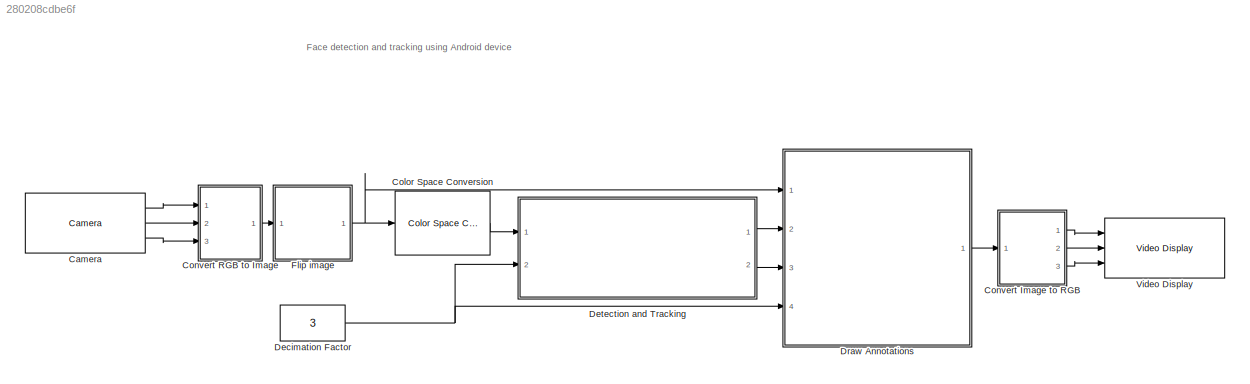
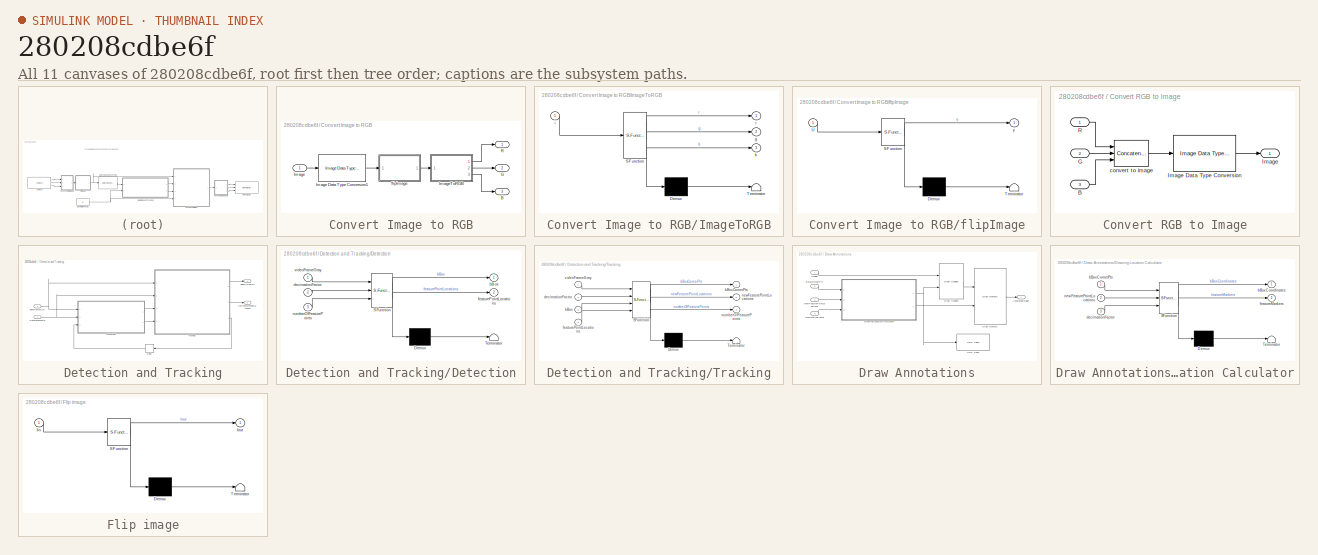
[diagram: thumbnail index - all 11 canvases of the model, root first then tree order]
MODEL slx_280208cdbe6f
KIND model
CONFIG AbsTol = auto
CONFIG EnableMultiTasking = off
CONFIG FixedStep = auto
CONFIG MaxStep = auto
CONFIG MinStep = auto
CONFIG RelTol = 1e-3
CONFIG SampleTimeConstraint = Unconstrained
CONFIG SolverName = FixedStepAuto
CONFIG StartTime = 0.0
CONFIG StopTime = inf
BLOCK [Reference] Camera  REF=androidaudiovideolib/Camera
  Ports = [0, 3]
  SourceBlock = androidaudiovideolib/Camera
  SourceProductBaseCode = ANDROID
  SourceType = codertarget.internal.androidCamera
BLOCK [Reference] Color Space Conversion  REF=visionconversions/Color Space
 Conversion
  Ports = [1, 1]
  SourceBlock = visionconversions/Color Space\n Conversion
  SourceProductBaseCode = VP
  SourceType = Color Space Conversion
BLOCK [SubSystem] Convert Image to RGB
  Ports = [1, 3]
  RequestExecContextInheritance = off
BLOCK [Outport] Convert Image to RGB/B
  Port = 3
BLOCK [Outport] Convert Image to RGB/G
  Port = 2
BLOCK [Inport] Convert Image to RGB/Image
BLOCK [Reference] Convert Image to RGB/Image Data Type Conversion1  REF=visionconversions/Image Data Type
Conversion
  Ports = [1, 1]
  SourceBlock = visionconversions/Image Data Type\nConversion
  SourceProductBaseCode = VP
  SourceType = Image Data Type Conversion
BLOCK [SubSystem] Convert Image to RGB/ImageToRGB
  ErrorFcn = Stateflow.Translate.translate
  PermitHierarchicalResolution = ExplicitOnly
  Ports = [1, 3]
  RequestExecContextInheritance = off
  SFBlockType = MATLAB Function
  TreatAsAtomicUnit = on
BLOCK [Demux] Convert Image to RGB/ImageToRGB/ Demux 
  Outputs = 1
  Ports = [1, 1]
BLOCK [S-Function] Convert Image to RGB/ImageToRGB/ SFunction 
  EnableBusSupport = on
  FunctionName = sf_sfun
  PortCounts = [1 4]
  Ports = [1, 4]
  SFcnIsStateOwnerBlock = off
  SFunctionDeploymentMode = off
  Tag = Stateflow S-Function 4
BLOCK [Terminator] Convert Image to RGB/ImageToRGB/ Terminator 
BLOCK [Outport] Convert Image to RGB/ImageToRGB/b
  Port = 3
  VectorParamsAs1DForOutWhenUnconnected = off
BLOCK [Outport] Convert Image to RGB/ImageToRGB/g
  Port = 2
  VectorParamsAs1DForOutWhenUnconnected = off
BLOCK [Inport] Convert Image to RGB/ImageToRGB/i
BLOCK [Outport] Convert Image to RGB/ImageToRGB/r
  VectorParamsAs1DForOutWhenUnconnected = off
BLOCK [Outport] Convert Image to RGB/R
BLOCK [SubSystem] Convert Image to RGB/flipImage
  ErrorFcn = Stateflow.Translate.translate
  PermitHierarchicalResolution = ExplicitOnly
  Ports = [1, 1]
  RequestExecContextInheritance = off
  SFBlockType = MATLAB Function
  TreatAsAtomicUnit = on
BLOCK [Demux] Convert Image to RGB/flipImage/ Demux 
  Outputs = 1
  Ports = [1, 1]
BLOCK [S-Function] Convert Image to RGB/flipImage/ SFunction 
  EnableBusSupport = on
  FunctionName = sf_sfun
  PortCounts = [1 2]
  Ports = [1, 2]
  SFcnIsStateOwnerBlock = off
  SFunctionDeploymentMode = off
  Tag = Stateflow S-Function 7
BLOCK [Terminator] Convert Image to RGB/flipImage/ Terminator 
BLOCK [Inport] Convert Image to RGB/flipImage/U
BLOCK [Outport] Convert Image to RGB/flipImage/y
  VectorParamsAs1DForOutWhenUnconnected = off
BLOCK [SubSystem] Convert RGB to Image
  Ports = [3, 1]
  RequestExecContextInheritance = off
BLOCK [Inport] Convert RGB to Image/B
  Port = 3
BLOCK [Inport] Convert RGB to Image/G
  Port = 2
BLOCK [Outport] Convert RGB to Image/Image
BLOCK [Reference] Convert RGB to Image/Image Data Type Conversion  REF=visionconversions/Image Data Type
Conversion
  Ports = [1, 1]
  SourceBlock = visionconversions/Image Data Type\nConversion
  SourceProductBaseCode = VP
  SourceType = Image Data Type Conversion
BLOCK [Inport] Convert RGB to Image/R
BLOCK [Concatenate] Convert RGB to Image/convert to image
  ConcatenateDimension = 3
  Mode = Multidimensional array
  NumInputs = 3
  Ports = [3, 1]
BLOCK [Constant] Decimation Factor
  Value = 3
BLOCK [SubSystem] Detection and Tracking
  Ports = [2, 2]
  RequestExecContextInheritance = off
BLOCK [Outport] Detection and Tracking/BBoxCornerPts
  VectorParamsAs1DForOutWhenUnconnected = off
BLOCK [Inport] Detection and Tracking/DecimationFactor
  Port = 2
BLOCK [Delay] Detection and Tracking/Delay
  DelayLength = 1
  InputPortMap = u0
  Ports = [1, 1]
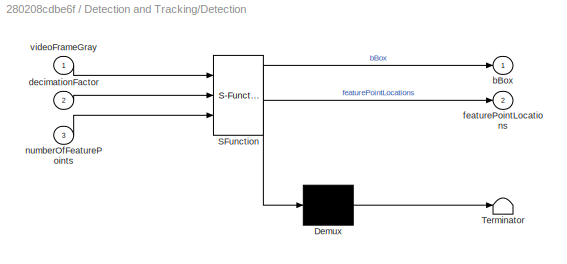
BLOCK [SubSystem] Detection and Tracking/Detection
  ErrorFcn = Stateflow.Translate.translate
  PermitHierarchicalResolution = ExplicitOnly
  Ports = [3, 2]
  RequestExecContextInheritance = off
  SFBlockType = MATLAB Function
  TreatAsAtomicUnit = on
BLOCK [Demux] Detection and Tracking/Detection/ Demux 
  Outputs = 1
  Ports = [1, 1]
BLOCK [S-Function] Detection and Tracking/Detection/ SFunction 
  EnableBusSupport = on
  FunctionName = sf_sfun
  PortCounts = [3 3]
  Ports = [3, 3]
  SFcnIsStateOwnerBlock = off
  SFunctionDeploymentMode = off
  Tag = Stateflow S-Function 2
BLOCK [Terminator] Detection and Tracking/Detection/ Terminator 
BLOCK [Outport] Detection and Tracking/Detection/bBox
  VectorParamsAs1DForOutWhenUnconnected = off
BLOCK [Inport] Detection and Tracking/Detection/decimationFactor
  Port = 2
BLOCK [Outport] Detection and Tracking/Detection/featurePointLocations
  Port = 2
  VectorParamsAs1DForOutWhenUnconnected = off
BLOCK [Inport] Detection and Tracking/Detection/numberOfFeaturePoints
  Port = 3
BLOCK [Inport] Detection and Tracking/Detection/videoFrameGray
BLOCK [Outport] Detection and Tracking/NewFeaturePointLocations
  Port = 2
  VectorParamsAs1DForOutWhenUnconnected = off
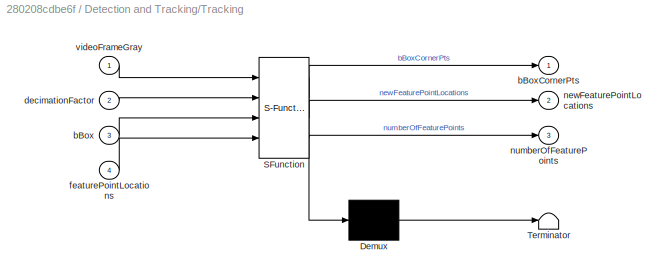
BLOCK [SubSystem] Detection and Tracking/Tracking
  ErrorFcn = Stateflow.Translate.translate
  PermitHierarchicalResolution = ExplicitOnly
  Ports = [4, 3]
  RequestExecContextInheritance = off
  SFBlockType = MATLAB Function
  TreatAsAtomicUnit = on
BLOCK [Demux] Detection and Tracking/Tracking/ Demux 
  Outputs = 1
  Ports = [1, 1]
BLOCK [S-Function] Detection and Tracking/Tracking/ SFunction 
  EnableBusSupport = on
  FunctionName = sf_sfun
  PortCounts = [4 4]
  Ports = [4, 4]
  SFcnIsStateOwnerBlock = off
  SFunctionDeploymentMode = off
  Tag = Stateflow S-Function 1
BLOCK [Terminator] Detection and Tracking/Tracking/ Terminator 
BLOCK [Inport] Detection and Tracking/Tracking/bBox
  Port = 3
BLOCK [Outport] Detection and Tracking/Tracking/bBoxCornerPts
  VectorParamsAs1DForOutWhenUnconnected = off
BLOCK [Inport] Detection and Tracking/Tracking/decimationFactor
  Port = 2
BLOCK [Inport] Detection and Tracking/Tracking/featurePointLocations
  Port = 4
BLOCK [Outport] Detection and Tracking/Tracking/newFeaturePointLocations
  Port = 2
  VectorParamsAs1DForOutWhenUnconnected = off
BLOCK [Outport] Detection and Tracking/Tracking/numberOfFeaturePoints
  Port = 3
  VectorParamsAs1DForOutWhenUnconnected = off
BLOCK [Inport] Detection and Tracking/Tracking/videoFrameGray
BLOCK [Inport] Detection and Tracking/VideoFrameGray
BLOCK [SubSystem] Draw Annotations
  Ports = [4, 1]
  RequestExecContextInheritance = off
BLOCK [Outport] Draw Annotations/AnnotatedImage
  VectorParamsAs1DForOutWhenUnconnected = off
BLOCK [Inport] Draw Annotations/BBoxCornerPts
  Port = 2
BLOCK [Inport] Draw Annotations/DecimationFactor
  Port = 4
BLOCK [Reference] Draw Annotations/Draw Markers  REF=visiontextngfix/Draw Markers
  Ports = [2, 1]
  SourceBlock = visiontextngfix/Draw Markers
  SourceProductBaseCode = VP
  SourceType = Draw Markers
BLOCK [Reference] Draw Annotations/Draw Shapes  REF=visiontextngfix/Draw Shapes
  Ports = [2, 1]
  SourceBlock = visiontextngfix/Draw Shapes
  SourceProductBaseCode = VP
  SourceType = Draw Shapes
BLOCK [SubSystem] Draw Annotations/Drawing Location Calculator
  ErrorFcn = Stateflow.Translate.translate
  PermitHierarchicalResolution = ExplicitOnly
  Ports = [3, 2]
  RequestExecContextInheritance = off
  SFBlockType = MATLAB Function
  TreatAsAtomicUnit = on
BLOCK [Demux] Draw Annotations/Drawing Location Calculator/ Demux 
  Outputs = 1
  Ports = [1, 1]
BLOCK [S-Function] Draw Annotations/Drawing Location Calculator/ SFunction 
  EnableBusSupport = on
  FunctionName = sf_sfun
  PortCounts = [3 3]
  Ports = [3, 3]
  SFcnIsStateOwnerBlock = off
  SFunctionDeploymentMode = off
  Tag = Stateflow S-Function 3
BLOCK [Terminator] Draw Annotations/Drawing Location Calculator/ Terminator 
BLOCK [Outport] Draw Annotations/Drawing Location Calculator/bBoxCoordinates
  VectorParamsAs1DForOutWhenUnconnected = off
BLOCK [Inport] Draw Annotations/Drawing Location Calculator/bBoxCornerPts
BLOCK [Inport] Draw Annotations/Drawing Location Calculator/decimationFactor
  Port = 3
BLOCK [Outport] Draw Annotations/Drawing Location Calculator/featureMarkers
  Port = 2
  VectorParamsAs1DForOutWhenUnconnected = off
BLOCK [Inport] Draw Annotations/Drawing Location Calculator/newFeaturePointLocations
  Port = 2
BLOCK [Inport] Draw Annotations/Image
BLOCK [Inport] Draw Annotations/NewFeaturePointLocations
  Port = 3
BLOCK [Reference] Draw Annotations/UDP Send  REF=androidcommunicationlib/UDP Send
  Ports = [1]
  SourceBlock = androidcommunicationlib/UDP Send
  SourceProductBaseCode = ANDROID
  SourceType = UDP Send
BLOCK [SubSystem] Flip image
  ErrorFcn = Stateflow.Translate.translate
  PermitHierarchicalResolution = ExplicitOnly
  Ports = [1, 1]
  RequestExecContextInheritance = off
  SFBlockType = MATLAB Function
  TreatAsAtomicUnit = on
BLOCK [Demux] Flip image/ Demux 
  Outputs = 1
  Ports = [1, 1]
BLOCK [S-Function] Flip image/ SFunction 
  EnableBusSupport = on
  FunctionName = sf_sfun
  PortCounts = [1 2]
  Ports = [1, 2]
  SFcnIsStateOwnerBlock = off
  SFunctionDeploymentMode = off
  Tag = Stateflow S-Function 5
BLOCK [Terminator] Flip image/ Terminator 
BLOCK [Inport] Flip image/Iin
BLOCK [Outport] Flip image/Iout
  VectorParamsAs1DForOutWhenUnconnected = off
BLOCK [Reference] Video Display  REF=androidaudiovideolib/Video Display
  Ports = [3]
  SourceBlock = androidaudiovideolib/Video Display
  SourceProductBaseCode = ANDROID
  SourceType = codertarget.internal.androidVideoDisplay
ANNOTATION (root): Face detection and tracking using Android device
LINE Camera:1 -> Convert RGB to Image:1
LINE Camera:2 -> Convert RGB to Image:2
LINE Camera:3 -> Convert RGB to Image:3
LINE Color Space Conversion:1 -> Detection and Tracking:1
LINE Convert Image to RGB/Image Data Type Conversion1:1 -> Convert Image to RGB/flipImage:1
LINE Convert Image to RGB/Image:1 -> Convert Image to RGB/Image Data Type Conversion1:1
LINE Convert Image to RGB/ImageToRGB:1 -> Convert Image to RGB/R:1
LINE Convert Image to RGB/ImageToRGB:2 -> Convert Image to RGB/G:1
LINE Convert Image to RGB/ImageToRGB:3 -> Convert Image to RGB/B:1
LINE Convert Image to RGB/flipImage:1 -> Convert Image to RGB/ImageToRGB:1
LINE Convert Image to RGB:1 -> Video Display:1
LINE Convert Image to RGB:2 -> Video Display:2
LINE Convert Image to RGB:3 -> Video Display:3
LINE Convert RGB to Image/B:1 -> Convert RGB to Image/convert to image:3
LINE Convert RGB to Image/G:1 -> Convert RGB to Image/convert to image:2
LINE Convert RGB to Image/Image Data Type Conversion:1 -> Convert RGB to Image/Image:1
LINE Convert RGB to Image/R:1 -> Convert RGB to Image/convert to image:1
LINE Convert RGB to Image/convert to image:1 -> Convert RGB to Image/Image Data Type Conversion:1
LINE Convert RGB to Image:1 -> Flip image:1
NET Decimation Factor:1 -> Detection and Tracking:2, Draw Annotations:4
NET Detection and Tracking/DecimationFactor:1 -> Detection and Tracking/Detection:2, Detection and Tracking/Tracking:2
LINE Detection and Tracking/Delay:1 -> Detection and Tracking/Detection:3
LINE Detection and Tracking/Detection:1 -> Detection and Tracking/Tracking:3
LINE Detection and Tracking/Detection:2 -> Detection and Tracking/Tracking:4
LINE Detection and Tracking/Tracking:1 -> Detection and Tracking/BBoxCornerPts:1
LINE Detection and Tracking/Tracking:2 -> Detection and Tracking/NewFeaturePointLocations:1
LINE Detection and Tracking/Tracking:3 -> Detection and Tracking/Delay:1
NET Detection and Tracking/VideoFrameGray:1 -> Detection and Tracking/Detection:1, Detection and Tracking/Tracking:1
LINE Detection and Tracking:1 -> Draw Annotations:2
LINE Detection and Tracking:2 -> Draw Annotations:3
LINE Draw Annotations/BBoxCornerPts:1 -> Draw Annotations/Drawing Location Calculator:1
LINE Draw Annotations/DecimationFactor:1 -> Draw Annotations/Drawing Location Calculator:3
LINE Draw Annotations/Draw Markers:1 -> Draw Annotations/AnnotatedImage:1
LINE Draw Annotations/Draw Shapes:1 -> Draw Annotations/Draw Markers:1
NET Draw Annotations/Drawing Location Calculator:1 -> Draw Annotations/Draw Shapes:2, Draw Annotations/UDP Send:1
LINE Draw Annotations/Drawing Location Calculator:2 -> Draw Annotations/Draw Markers:2
LINE Draw Annotations/Image:1 -> Draw Annotations/Draw Shapes:1
LINE Draw Annotations/NewFeaturePointLocations:1 -> Draw Annotations/Drawing Location Calculator:2
LINE Draw Annotations:1 -> Convert Image to RGB:1
NET Flip image:1 -> Color Space Conversion:1, Draw Annotations:1
note: NET lines group one-source signal fan-out (src -> all destinations, sorted); 1:1 wires keep LINE
CHART Detection and Tracking/Tracking states=1 transitions=1
  STATE_LABEL 'eML_blk_kernel()'
  STATE_LABEL 'SCRIPT:\n% Function for tracking face and feature points\n%\n% <copyright redacted>\nfunction [bBoxCornerPts, newFeaturePointLocations, numberOfFeaturePoints]  = trackPoints(videoFrameGray, decimationFactor, bBox, featurePointLocations)\n%#codegen\npersistent pointTracker\npersistent oldPoints\npersistent bboxPoints\npersistent first_time\npersistent numPts\n\n% Create the point tracker object.\n...<+2704ch>'
CHART Detection and Tracking/Detection states=1 transitions=1
  STATE_LABEL 'eML_blk_kernel()'
  STATE_LABEL 'SCRIPT:\n% Function for detecting a face and feature points.\n%\n% <copyright redacted>\nfunction [bBox, featurePointLocations]  = detectFaceAndFeatures(...\n    videoFrameGray, decimationFactor, numberOfFeaturePoints)\n\n%#codegen\npersistent faceDetector\n\n% Resize frame\nvideoFrameGray = videoFrameGray(1:decimationFactor:end,1:decimationFactor:end);\n\n% Perform detection when the number of p...<+885ch>'
CHART Draw Annotations/Drawing Location Calculator states=1 transitions=1
  STATE_LABEL 'eML_blk_kernel()'
  STATE_LABEL "SCRIPT:\n% Function for calculating drawing locations\n%\n% <copyright redacted>\nfunction [bBoxCoordinates, featureMarkers]  = obtainDrawingLocations(bBoxCornerPts, newFeaturePointLocations, decimationFactor)\n\nif ~isempty(bBoxCornerPts)\n    % Convert the box corners into the [x1 y1 x2 y2 x3 y3 x4 y4]\n    % format required by insertShape.\n    bboxPolygon = reshape(bBoxCornerPts', 1, []);...<+450ch>"
CHART Convert Image to RGB/ImageToRGB states=1 transitions=1
  STATE_LABEL 'eML_blk_kernel()'
  STATE_LABEL 'SCRIPT:\nfunction [r,g,b] = ImageToRGB(i)\nr =i(:,:,1);\ng =i(:,:,2);\nb =i(:,:,3);'
CHART Flip image states=1 transitions=1
  STATE_LABEL 'eML_blk_kernel()'
  STATE_LABEL 'SCRIPT:\nfunction Iout = flip(Iin)\n%rotate image anti clockwise 90 degrees\nIin= imrotate( Iin , 90 );\n%Flip image\nIin=flipdim(Iin,1);\nIout = Iin;'
CHART Convert Image to RGB/flipImage states=1 transitions=1
  STATE_LABEL 'eML_blk_kernel()'
  STATE_LABEL 'SCRIPT:\nfunction y = flipImage(U)\nU= imrotate( U , 90 );\n%Flip image\nU=flipdim(U,1);\n\ny = U;\n'
CHART  states=0 transitions=0
CHART  states=0 transitions=0
CHART  states=0 transitions=0
CHART  states=0 transitions=0
CHART  states=0 transitions=0
CHART  states=0 transitions=0
